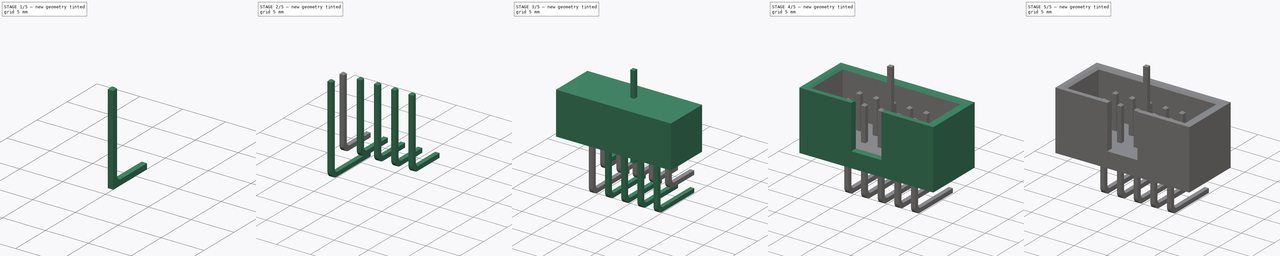
[diagram: build sequence overview — one tinted view per stage of 5, left to right]
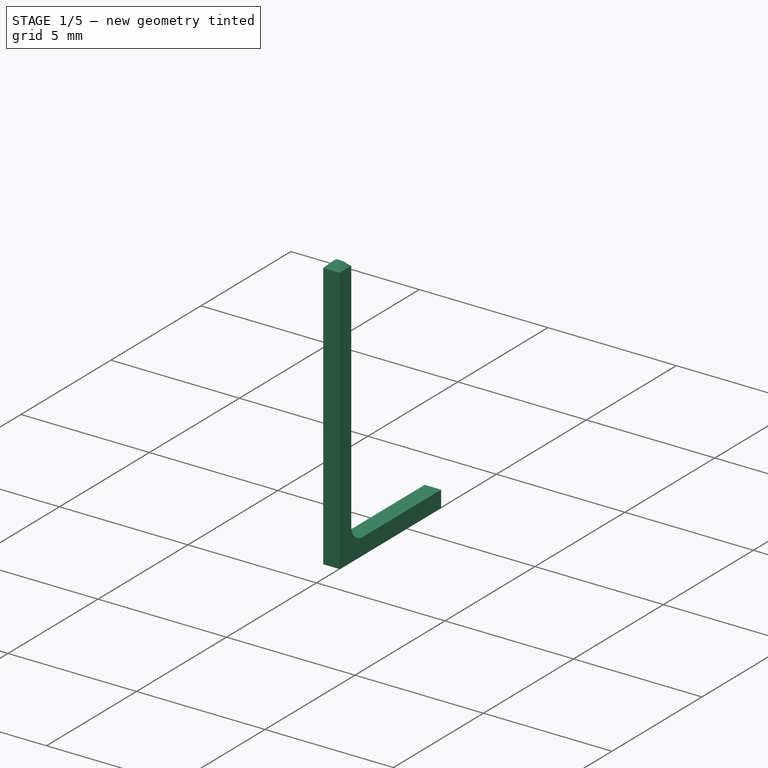
[diagram: stage 1 of 5 — iso view after this stage's code; geometry added in this stage tinted green]
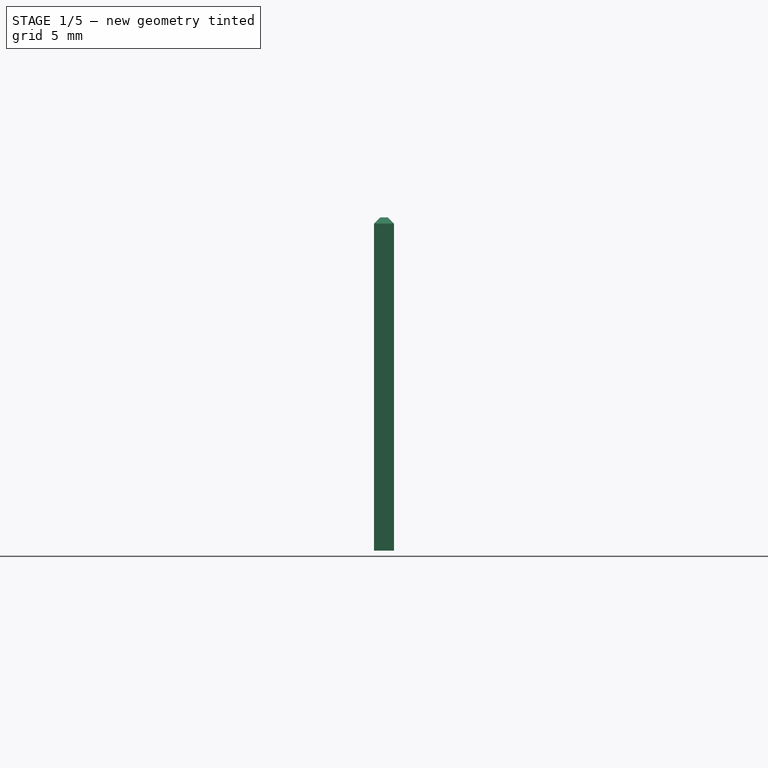
[diagram: stage 1 of 5 — front view after this stage's code; geometry added in this stage tinted green]
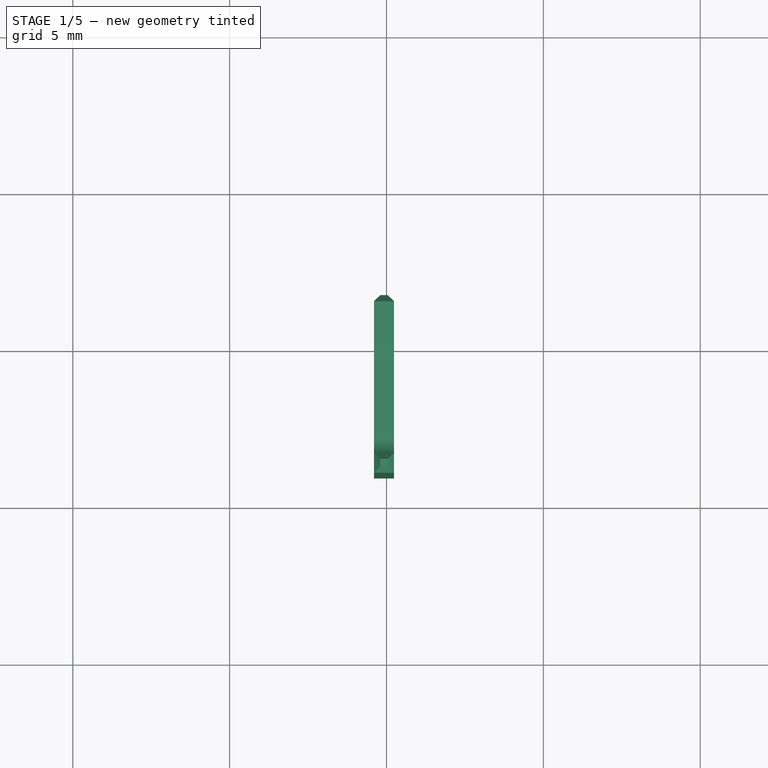
[diagram: stage 1 of 5 — top view after this stage's code; geometry added in this stage tinted green]
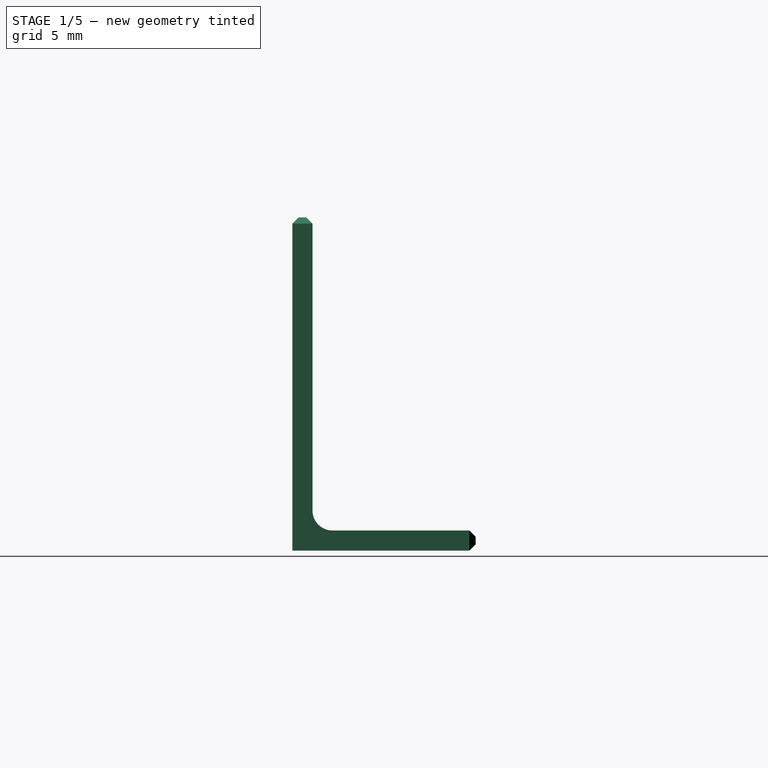
[diagram: stage 1 of 5 — right view after this stage's code; geometry added in this stage tinted green]
FCSTD DOCUMENT  (FreeCAD 0.16R6706 (Git))
Label: IDC10-45
License: All rights reserved
LicenseURL: http://en.wikipedia.org/wiki/All_rights_reserved
objects: Part::Cylinder×4, Part::Chamfer×4, Part::Fillet×4, Part::Box×3, Part::Cut×2, Part::Feature×2, Sketcher::SketchObject×2, PartDesign::Pad×2, Part::FeaturePython×2, Part::Compound×1
note: 28 computed .brp shape members not serialized (recipe doc carries the construction recipe); baked Part::Feature solids carry a one-line shape summary decoded from their .brp

FEATURE [PartDesign::Pad] Pad001  label="pin_krotki"
  Length = 0.64
  Length2 = 100
  Placement = pos=(0,0,0) rot=(0.57735,0.57735,0.57735;2.0944rad)
  Sketch = -> Sketch001
  Type = 0
FEATURE [Part::Compound] Compound  label="pin_krotki001"
  Links = -> [Pad001]
  Placement = pos=(-5.4,0.95,-2.82) rot=(0,0,1;0rad)
FEATURE [Part::Chamfer] Chamfer003  label="pin_krotki002"
  Base = -> Compound
  Edges = 8 edges r=0.2: [Edge1,Edge2,Edge3,Edge4,Edge8,Edge11,Edge12,Edge13]
FEATURE [Part::Fillet] Fillet001003
  Base = -> Chamfer003
  Edges = 1 edges r=0.64: [Edge24]
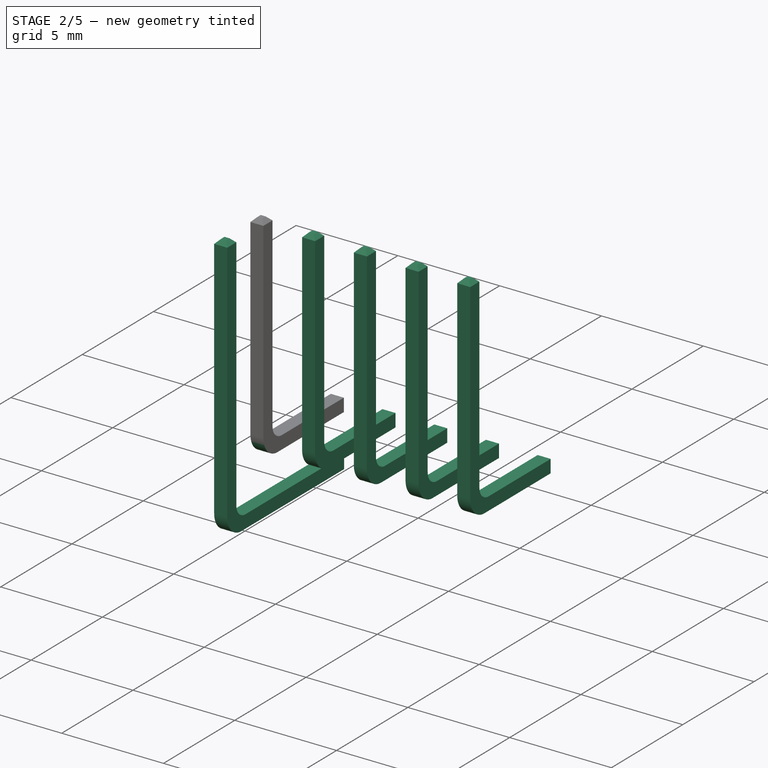
[diagram: stage 2 of 5 — iso view after this stage's code; geometry added in this stage tinted green]
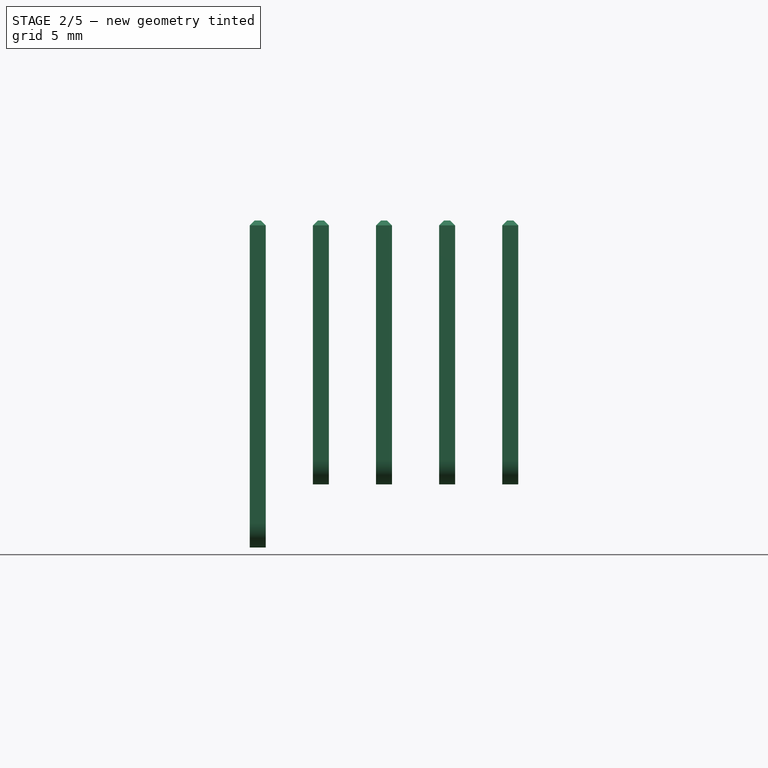
[diagram: stage 2 of 5 — front view after this stage's code; geometry added in this stage tinted green]
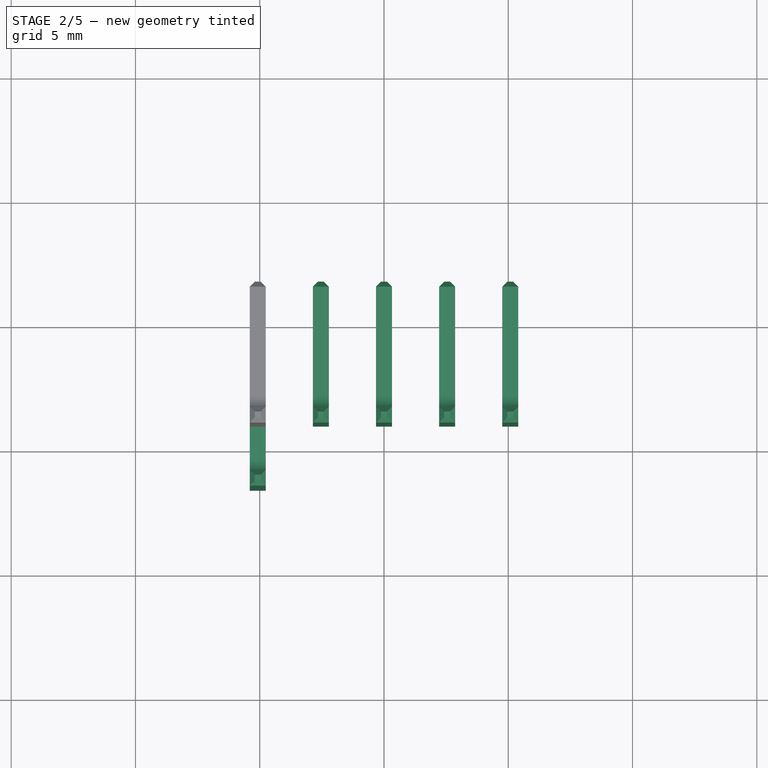
[diagram: stage 2 of 5 — top view after this stage's code; geometry added in this stage tinted green]
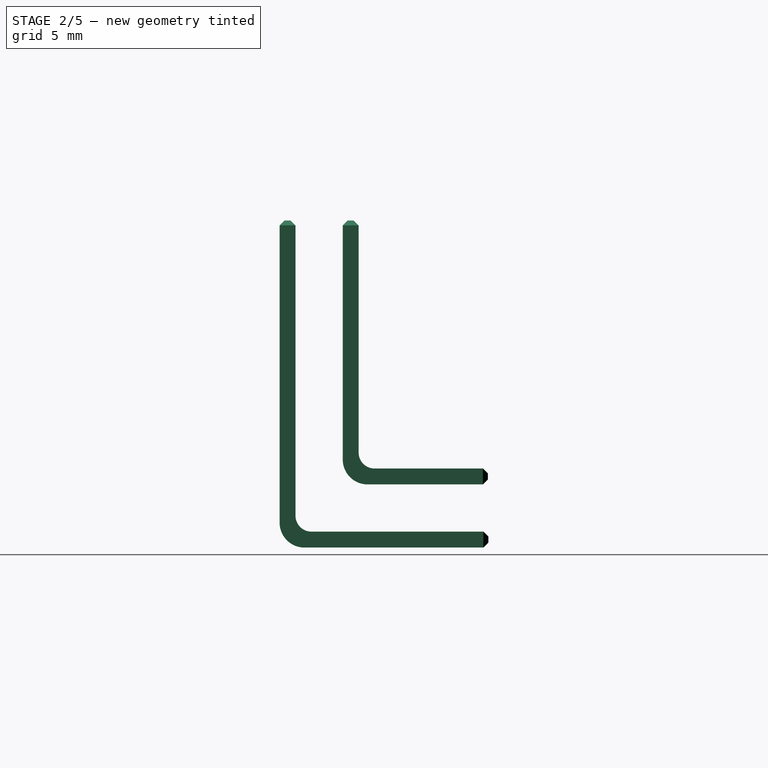
[diagram: stage 2 of 5 — right view after this stage's code; geometry added in this stage tinted green]
FEATURE [Sketcher::SketchObject] Sketch001
  Placement = pos=(0,0,0) rot=(0.57735,0.57735,0.57735;2.0944rad)
  sketch-geometry (6):
    g0: LineSegment StartX=0 StartY=10.62 StartZ=0 EndX=0.64 EndY=10.62 EndZ=0
    g1: LineSegment StartX=0.64 StartY=10.62 StartZ=0 EndX=0.64 EndY=0.64 EndZ=0
    g2: LineSegment StartX=0.64 StartY=0.64 StartZ=0 EndX=5.84 EndY=0.64 EndZ=0
    g3: LineSegment StartX=5.84 StartY=0.64 StartZ=0 EndX=5.84 EndY=0 EndZ=0
    g4: LineSegment StartX=5.84 StartY=0 StartZ=0 EndX=0 EndY=0 EndZ=0
    g5: LineSegment StartX=0 StartY=0 StartZ=0 EndX=0 EndY=10.62 EndZ=0
  constraints (18):
    c: PointOnObject(g0,g-2)
    c: Horizontal(g0)
    c: Coincident(g0,g1)
    c: Vertical(g1)
    c: Coincident(g1,g2)
    c: Horizontal(g2)
    c: Coincident(g2,g3)
    c: Vertical(g3)
    c: Coincident(g3,g4)
    c: PointOnObject(g4,g-2)
    c: Horizontal(g4)
    c: Coincident(g4,g5)
    c: Coincident(g5,g0)
    c: DistanceX(g0,g0) = 0.64
    c: DistanceY(g5,g5) = 10.62
    c: DistanceX(g4,g4) = 5.84
    c: Coincident(g4,g-1)
    c: Equal(g3,g0)
FEATURE [Part::Feature] Pad002  label="pin_dlugi001"
  Placement = pos=(0,0,0) rot=(0.57735,0.57735,0.57735;2.0944rad)
  shape: bbox 0.64 x 8.4 x 13.16 mm, 8 faces (baked)
FEATURE [Part::Fillet] Fillet
  Base = -> Pad002
  Edges = 1 edges r=0.64: [Edge5]
FEATURE [Part::Fillet] Fillet001002
  Base = -> Fillet
  Edges = 1 edges r=1: [Edge20]
FEATURE [Part::Chamfer] Chamfer
  Base = -> Fillet001002
  Edges = 8 edges r=0.2: [Edge3,Edge6,Edge10,Edge14,Edge15,Edge16,Edge20,Edge21]
  Placement = pos=(-5.4,-1.59,-5.36) rot=(0,0,1;0rad)
FEATURE [Part::Fillet] Fillet001004  label="pin_krotki003"
  Base = -> Fillet001003
  Edges = 1 edges r=1: [Edge19]
FEATURE [Part::FeaturePython] Array002  label="piny_krotkie"  # Draft array (typed FeaturePython)
  Angle = 360
  ArrayType = 0
  Axis = (0,0,1)
  Base = -> Fillet001004
  Center = (0,0,0)
  Fuse = false
  IntervalAxis = (0,0,0)
  IntervalX = (2.54,0,0)
  IntervalY = (0,1,0)
  IntervalZ = (0,0,0)
  NumberPolar = 1
  NumberX = 5
  NumberY = 1
  NumberZ = 1
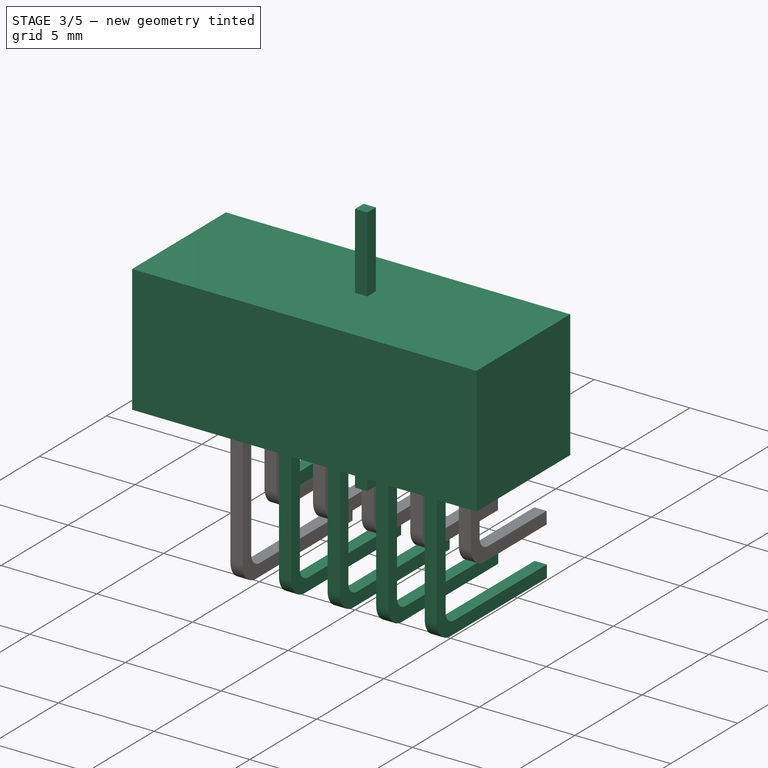
[diagram: stage 3 of 5 — iso view after this stage's code; geometry added in this stage tinted green]
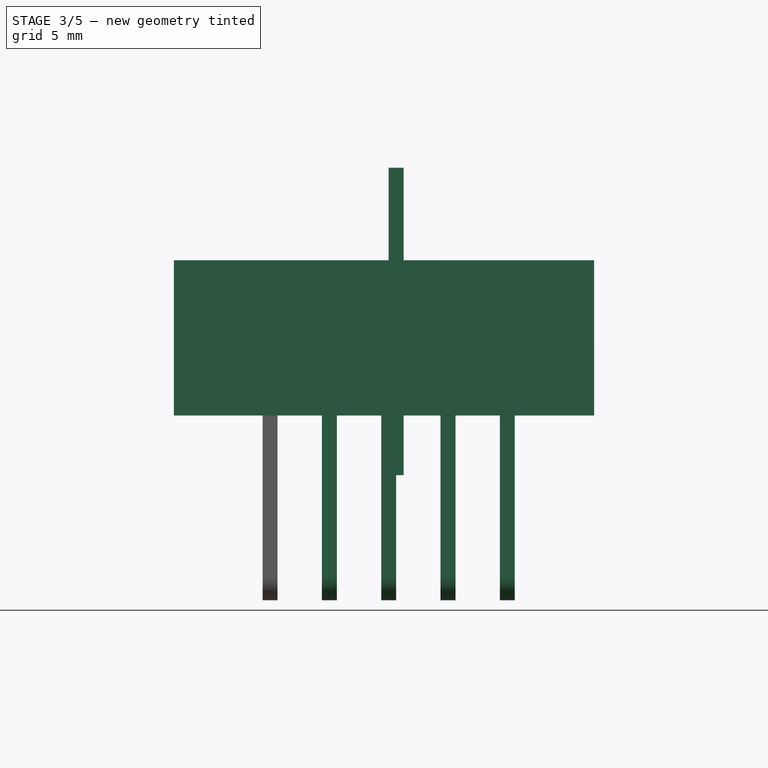
[diagram: stage 3 of 5 — front view after this stage's code; geometry added in this stage tinted green]
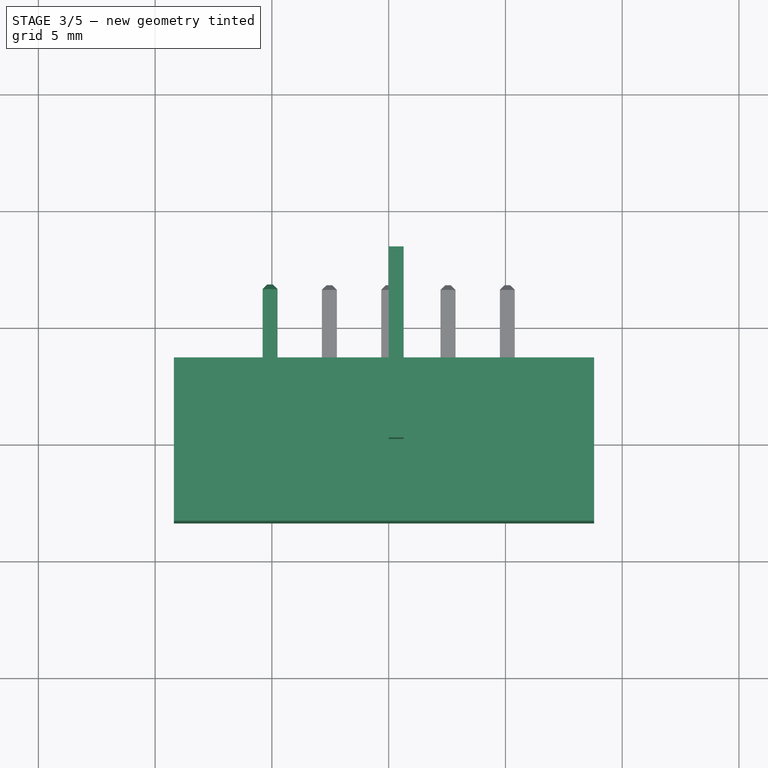
[diagram: stage 3 of 5 — top view after this stage's code; geometry added in this stage tinted green]
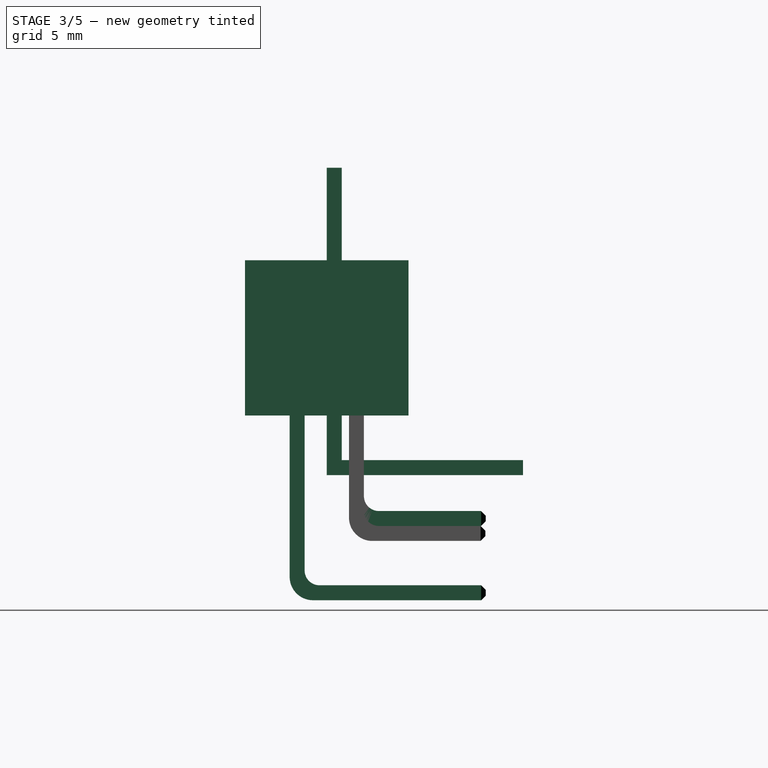
[diagram: stage 3 of 5 — right view after this stage's code; geometry added in this stage tinted green]
FEATURE [Part::Box] Box003  label="Cube003"
  Height = 6.65
  Length = 18
  Placement = pos=(-9.2,-3.5,2.55) rot=(0,0,1;0rad)
  Width = 7
FEATURE [Part::Feature] Fillet001001  label="Pins45"
  Placement = pos=(0,0,7.8) rot=(1,0,0;4.71239rad)
  shape: bbox 8.4 x 0.64 x 13.16 mm, 20 faces, 2 solids (baked)
FEATURE [Part::Chamfer] Chamfer002
  Base = -> Fillet001001
  Edges = 16 edges r=0.2: [Edge3,Edge6,Edge10,Edge14,Edge15,Edge16,Edge20,Edge21,Edge27,Edge30,Edge34,Edge38,Edge39,Edge40,Edge44,Edge45]
  Placement = pos=(-5.4,-1.59,0) rot=(0,0,-1;1.5708rad)
FEATURE [Sketcher::SketchObject] Sketch
  Placement = pos=(0,0,0) rot=(0.57735,0.57735,0.57735;2.0944rad)
  sketch-geometry (6):
    g0: LineSegment StartX=0 StartY=13.16 StartZ=0 EndX=0.64 EndY=13.16 EndZ=0
    g1: LineSegment StartX=0.64 StartY=13.16 StartZ=0 EndX=0.64 EndY=0.64 EndZ=0
    g2: LineSegment StartX=0.64 StartY=0.64 StartZ=0 EndX=8.4 EndY=0.64 EndZ=0
    g3: LineSegment StartX=8.4 StartY=0.64 StartZ=0 EndX=8.4 EndY=0 EndZ=0
    g4: LineSegment StartX=8.4 StartY=0 StartZ=0 EndX=0 EndY=0 EndZ=0
    g5: LineSegment StartX=0 StartY=0 StartZ=0 EndX=0 EndY=13.16 EndZ=0
  constraints (18):
    c: PointOnObject(g0,g-2)
    c: Horizontal(g0)
    c: Coincident(g0,g1)
    c: Vertical(g1)
    c: Coincident(g1,g2)
    c: Horizontal(g2)
    c: Coincident(g2,g3)
    c: Vertical(g3)
    c: Coincident(g3,g4)
    c: PointOnObject(g4,g-2)
    c: Horizontal(g4)
    c: Coincident(g4,g5)
    c: Coincident(g5,g0)
    c: Equal(g0,g3)
    c: DistanceX(g0,g0) = 0.64
    c: DistanceY(g5,g5) = 13.16
    c: DistanceX(g4,g4) = 8.4
    c: Coincident(g4,g-1)
FEATURE [PartDesign::Pad] Pad  label="pin_dlugi"
  Length = 0.64
  Length2 = 100
  Placement = pos=(0,0,0) rot=(0.57735,0.57735,0.57735;2.0944rad)
  Sketch = -> Sketch
  Type = 0
FEATURE [Part::FeaturePython] Array  label="piny_dlugie"  # Draft array (typed FeaturePython)
  Angle = 360
  ArrayType = 0
  Axis = (0,0,1)
  Base = -> Chamfer
  Center = (0,0,0)
  Fuse = false
  IntervalAxis = (0,0,0)
  IntervalX = (2.54,0,0)
  IntervalY = (0,1,0)
  IntervalZ = (0,0,0)
  NumberPolar = 1
  NumberX = 5
  NumberY = 1
  NumberZ = 1
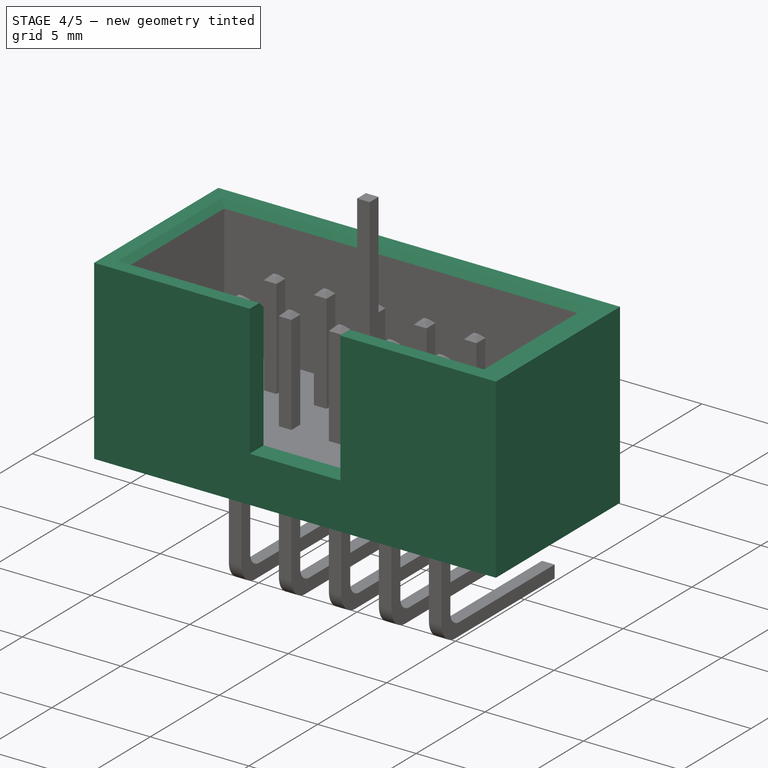
[diagram: stage 4 of 5 — iso view after this stage's code; geometry added in this stage tinted green]
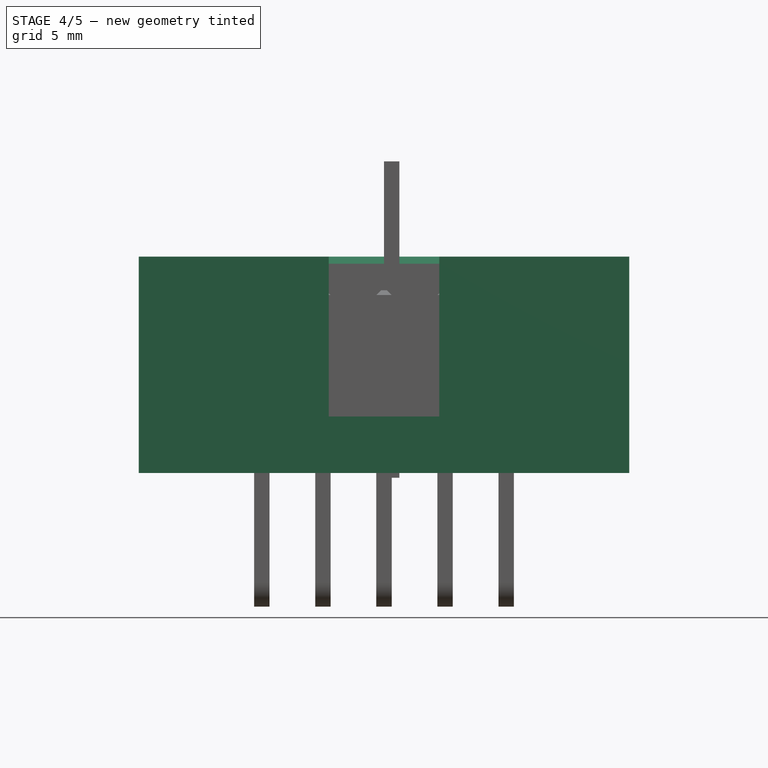
[diagram: stage 4 of 5 — front view after this stage's code; geometry added in this stage tinted green]
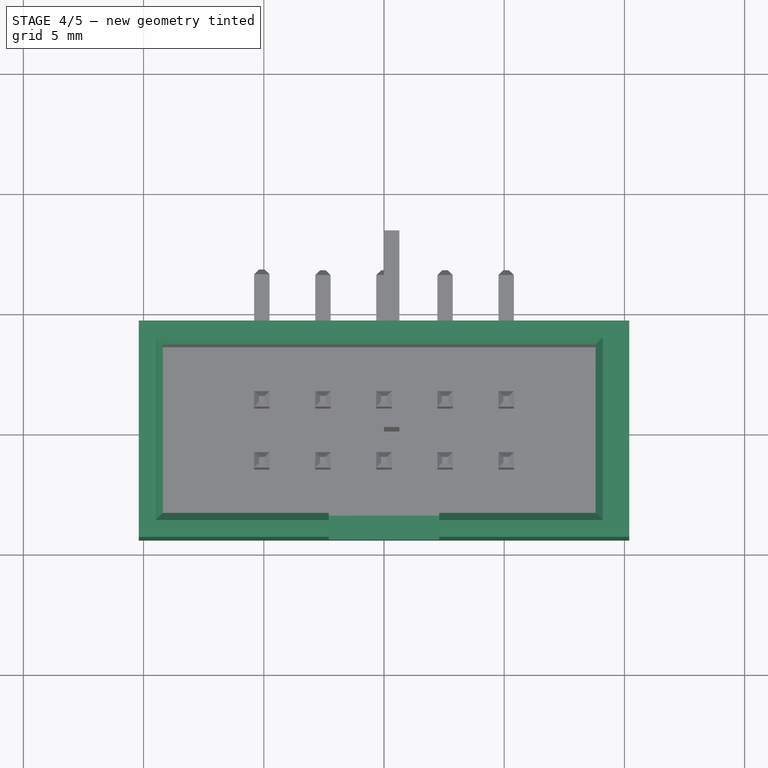
[diagram: stage 4 of 5 — top view after this stage's code; geometry added in this stage tinted green]
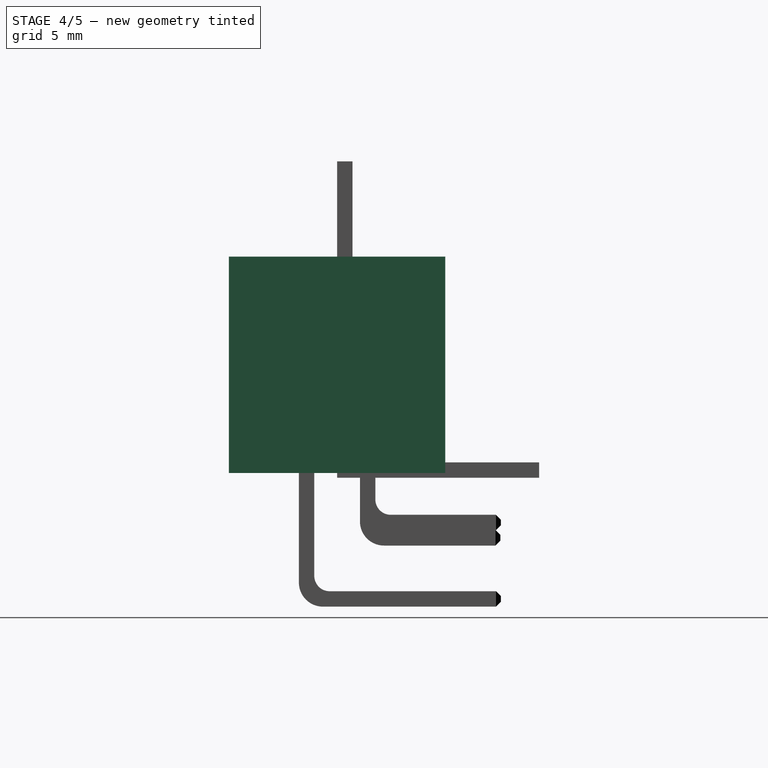
[diagram: stage 4 of 5 — right view after this stage's code; geometry added in this stage tinted green]
FEATURE [Part::Box] Box002  label="Cube002"
  Height = 9
  Length = 20.4
  Placement = pos=(-10.2,-4.5,0.2) rot=(0,0,1;0rad)
  Width = 9
FEATURE [Part::Box] Box004  label="Cube004"
  Height = 6.65
  Length = 4.6
  Placement = pos=(-2.3,-5,2.55) rot=(0,0,1;0rad)
  Width = 2
FEATURE [Part::Cut] Cut
  Base = -> Box002
  Tool = -> Box003
FEATURE [Part::Cut] Cut001
  Base = -> Cut
  Tool = -> Box004
FEATURE [Part::Chamfer] Chamfer001
  Base = -> Cut001
  Edges = 5 edges r=0.3: [Edge15,Edge16,Edge17,Edge18,Edge19]
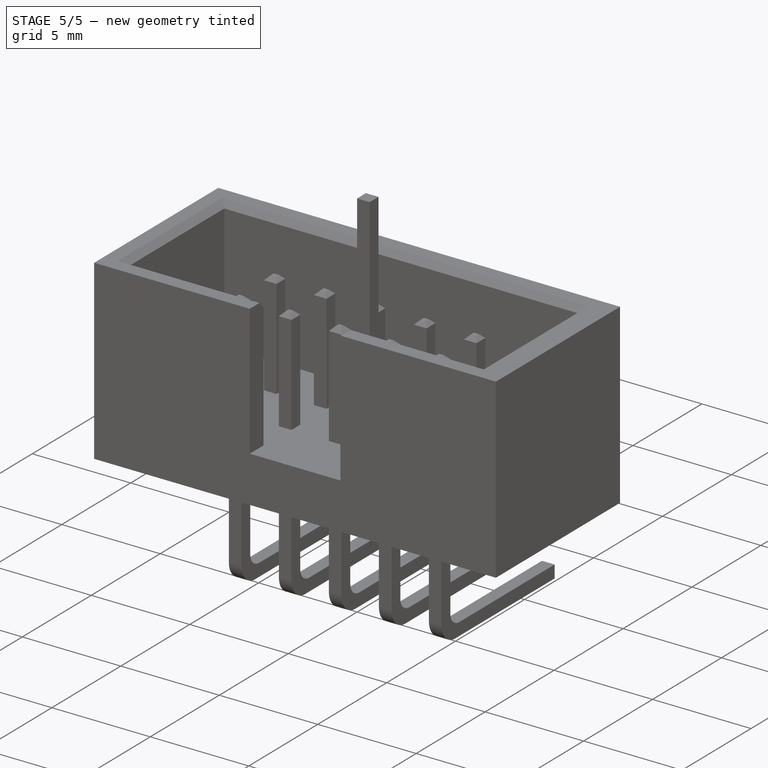
[diagram: stage 5 of 5 — iso view after this stage's code; geometry added in this stage tinted green]
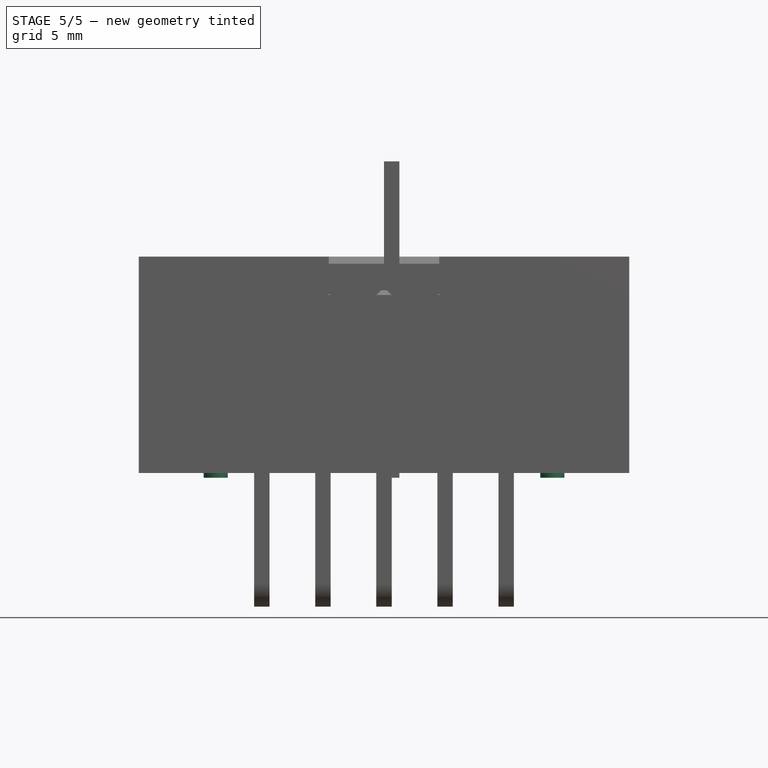
[diagram: stage 5 of 5 — front view after this stage's code; geometry added in this stage tinted green]
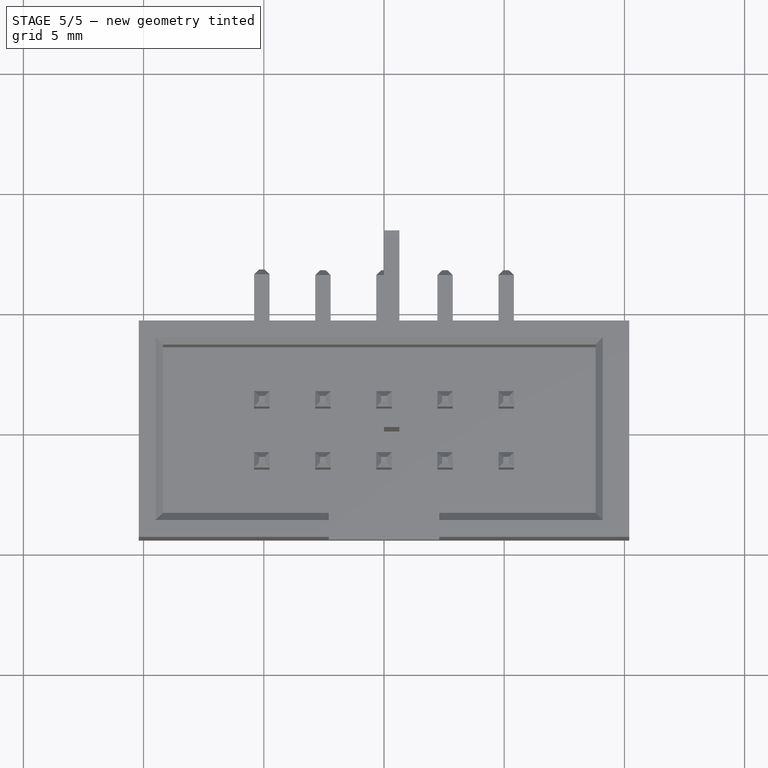
[diagram: stage 5 of 5 — top view after this stage's code; geometry added in this stage tinted green]
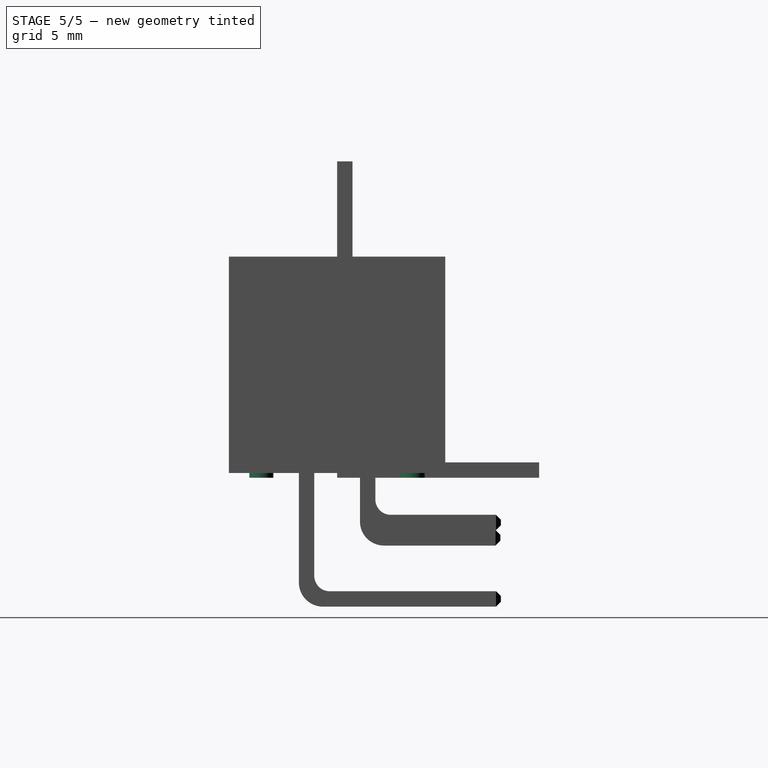
[diagram: stage 5 of 5 — right view after this stage's code; geometry added in this stage tinted green]
FEATURE [Part::Cylinder] Cylinder
  Angle = 360
  Height = 0.2
  Placement = pos=(7,3.15,0) rot=(0,0,1;0rad)
  Radius = 0.5
FEATURE [Part::Cylinder] Cylinder001
  Angle = 360
  Height = 0.2
  Placement = pos=(7,-3.15,0) rot=(0,0,1;0rad)
  Radius = 0.5
FEATURE [Part::Cylinder] Cylinder002
  Angle = 360
  Height = 0.2
  Placement = pos=(-7,3.15,0) rot=(0,0,1;0rad)
  Radius = 0.5
FEATURE [Part::Cylinder] Cylinder003
  Angle = 360
  Height = 0.2
  Placement = pos=(-7,-3.15,0) rot=(0,0,1;0rad)
  Radius = 0.5
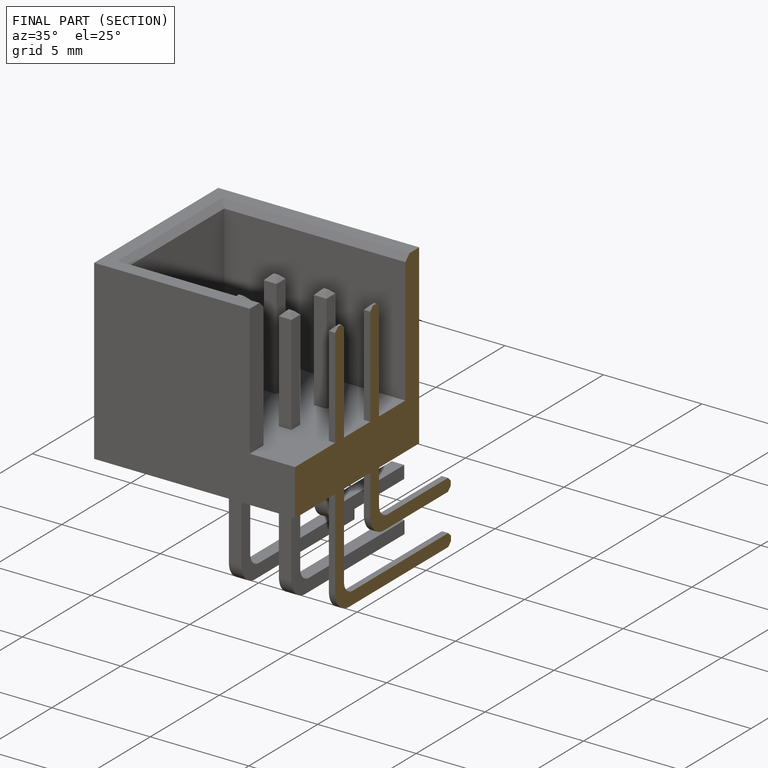
[diagram: finished part — half-section view (interior)]
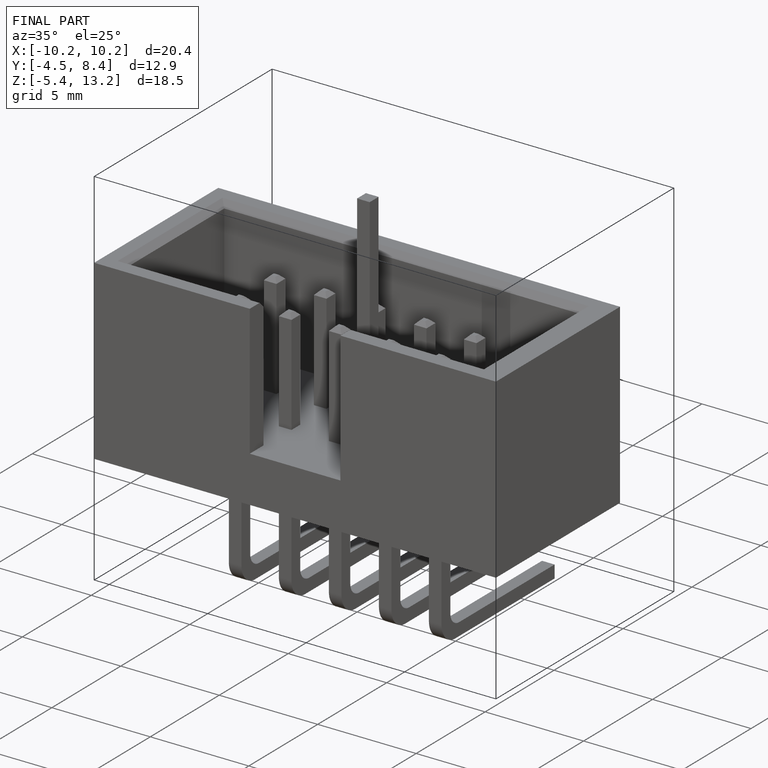
[diagram: finished part — iso view with bounding-box wireframe]
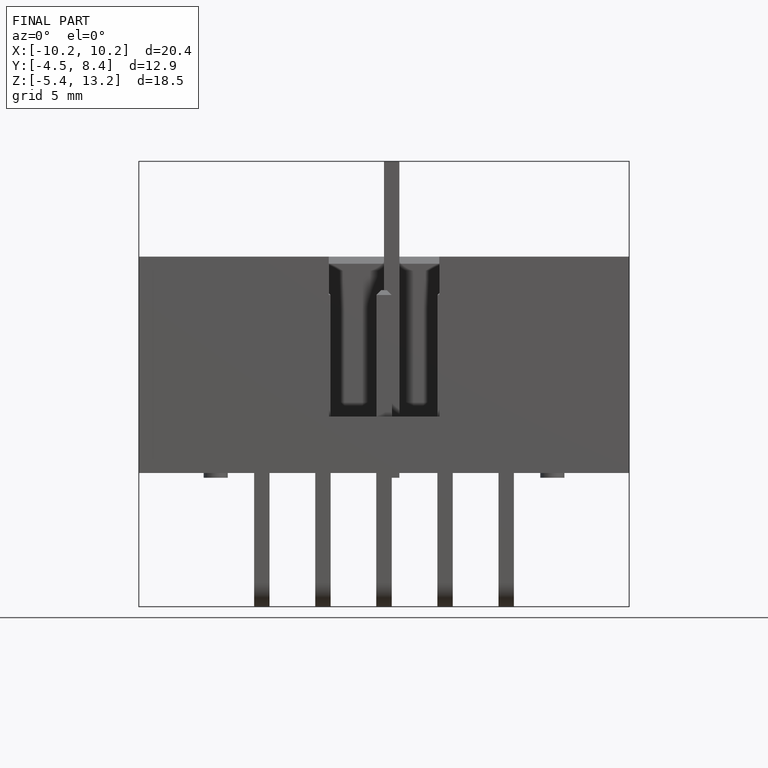
[diagram: finished part — front view with bounding-box wireframe]
